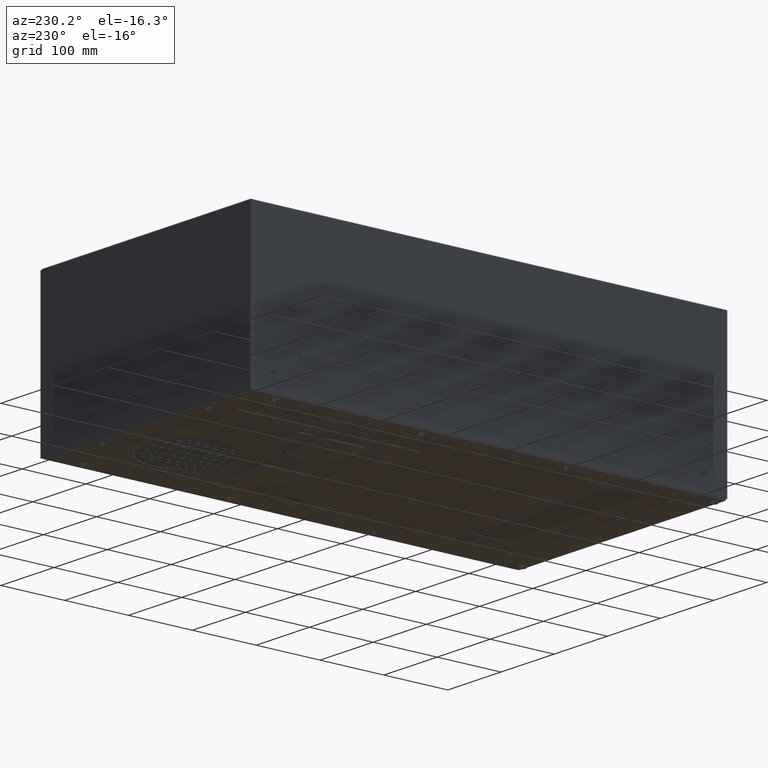
[diagram: clean part render]
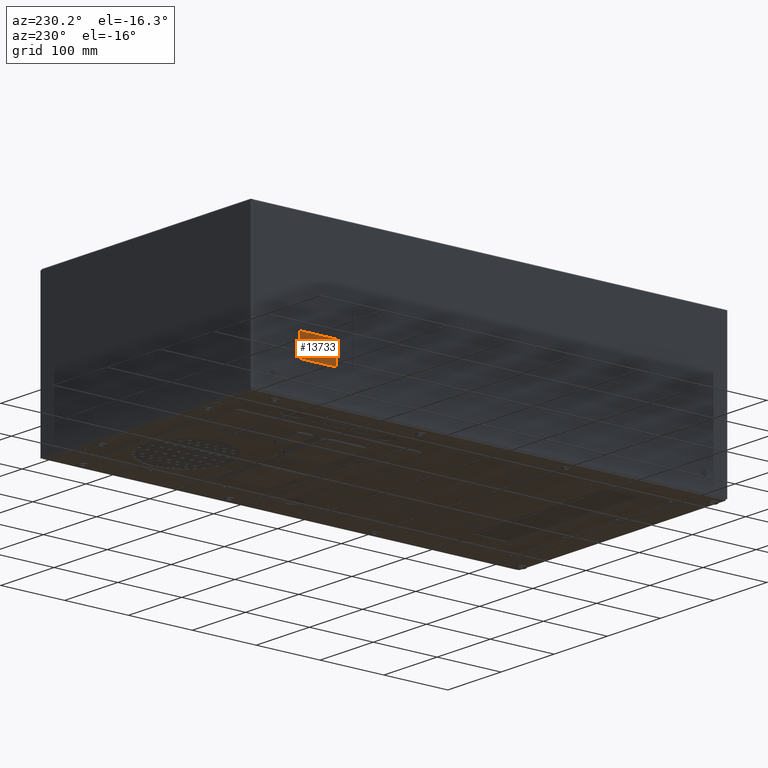
[diagram: same view with one face highlighted and labeled with its STEP entity id]
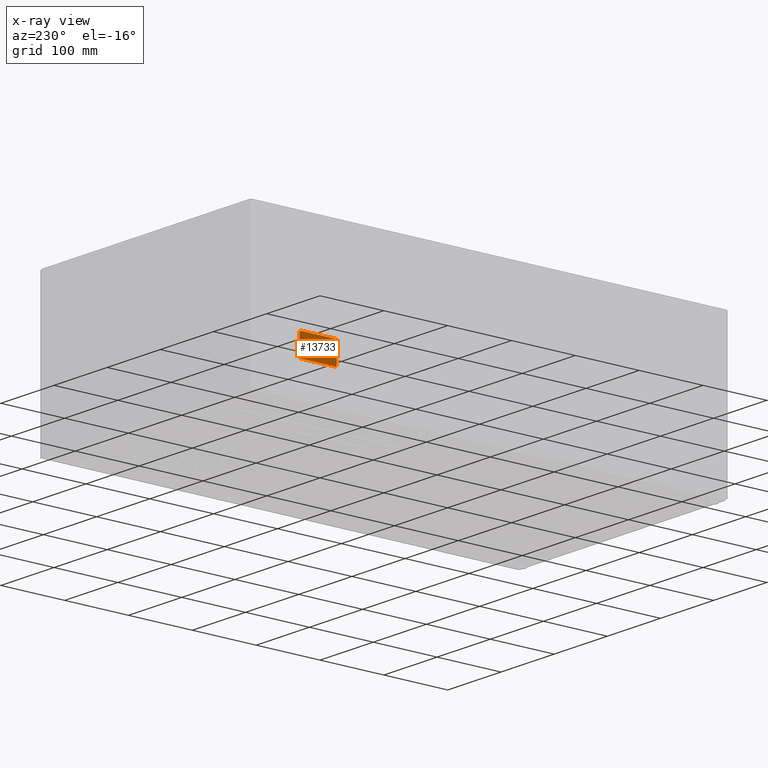
[diagram: x-ray of the same camera — body ghosted, the highlighted face saturated]
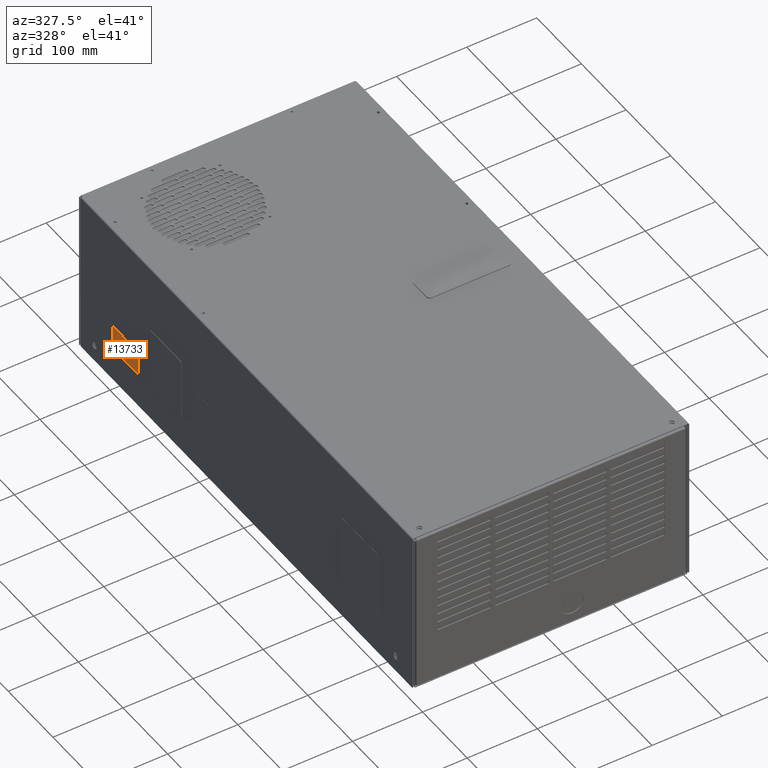
[diagram: same view with one face highlighted and labeled with its STEP entity id]
A machine part, auxiliary view. The second image highlights one B-rep face of the part: STEP entity #13733.
The next image is the same camera in x-ray: the body ghosted, the highlighted face saturated — about 0% of this face is hidden behind the body in this view.
A second angle (auxiliary view) of the same face is appended — the face is thin or edge-on in the first view.
In plain terms, the highlighted planar face has unit normal (-1, 0, 0).
Its self-contained STEP definition (entity closure, byte-faithful):
#362 = VERTEX_POINT ( 'NONE', #57793 ) ;
#846 = VERTEX_POINT ( 'NONE', #58721 ) ;
#1414 = CARTESIAN_POINT ( 'NONE',  ( -7.795275590551181466, 11.61964041831102534, -2.652748818897566974 ) ) ;
#3374 = VERTEX_POINT ( 'NONE', #64704 ) ;
#3586 = VECTOR ( 'NONE', #8534, 39.37007874015748143 ) ;
#6974 = EDGE_CURVE ( 'NONE', #30270, #65971, #50795, .T. ) ;
#8534 = DIRECTION ( 'NONE',  ( 0.000000000000000000, 1.391066095212824273E-14, -1.000000000000000000 ) ) ;
#10426 = EDGE_CURVE ( 'NONE', #846, #56964, #28728, .T. ) ;
#10958 = DIRECTION ( 'NONE',  ( -1.000000000000000000, 0.000000000000000000, 0.000000000000000000 ) ) ;
#11137 = CARTESIAN_POINT ( 'NONE',  ( -7.795275590551181466, 9.493656166342500313, -1.353536220472399298 ) ) ;
#12132 = CARTESIAN_POINT ( 'NONE',  ( -7.795275590551181466, 11.61964041831102534, -2.652748818897566974 ) ) ;
#13733 = ADVANCED_FACE ( 'NONE', ( #65962 ), #66607, .T. ) ;
#15251 = CARTESIAN_POINT ( 'NONE',  ( -7.795275590551181466, 11.61964041831102534, -2.574008661417252153 ) ) ;
#17734 = CIRCLE ( 'NONE', #53359, 0.07874015748031502893 ) ;
#19722 = ORIENTED_EDGE ( 'NONE', *, *, #29205, .T. ) ;
#20291 = EDGE_CURVE ( 'NONE', #3374, #362, #44462, .T. ) ;
#20313 = LINE ( 'NONE', #40603, #50676 ) ;
#22407 = VERTEX_POINT ( 'NONE', #12132 ) ;
#24755 = CARTESIAN_POINT ( 'NONE',  ( -7.795275590551181466, 11.69838057579132062, -1.353536220472369989 ) ) ;
#24963 = DIRECTION ( 'NONE',  ( 0.000000000000000000, -1.387778780781444571E-14, 1.000000000000000000 ) ) ;
#26360 = DIRECTION ( 'NONE',  ( 0.000000000000000000, -1.387778780781444571E-14, 1.000000000000000000 ) ) ;
#27087 = LINE ( 'NONE', #1414, #33185 ) ;
#28728 = CIRCLE ( 'NONE', #52480, 0.07874015748031502893 ) ;
#29194 = ORIENTED_EDGE ( 'NONE', *, *, #47301, .T. ) ;
#29205 = EDGE_CURVE ( 'NONE', #56964, #3374, #32951, .T. ) ;
#29668 = EDGE_CURVE ( 'NONE', #362, #41306, #20313, .T. ) ;
#29832 = CARTESIAN_POINT ( 'NONE',  ( -7.795275590551181466, 11.61964041831100580, -1.274796062992055168 ) ) ;
#30270 = VERTEX_POINT ( 'NONE', #51336 ) ;
#31135 = CARTESIAN_POINT ( 'NONE',  ( -7.795275590551181466, 11.61964041831100580, -1.353536220472369989 ) ) ;
#31144 = DIRECTION ( 'NONE',  ( -1.000000000000000000, 0.000000000000000000, 0.000000000000000000 ) ) ;
#32243 = VECTOR ( 'NONE', #33616, 39.37007874015748143 ) ;
#32416 = AXIS2_PLACEMENT_3D ( 'NONE', #31135, #58473, #49690 ) ;
#32951 = LINE ( 'NONE', #49841, #32243 ) ;
#33185 = VECTOR ( 'NONE', #33805, 39.37007874015748143 ) ;
#33616 = DIRECTION ( 'NONE',  ( 0.000000000000000000, -1.391066095212824273E-14, 1.000000000000000000 ) ) ;
#33805 = DIRECTION ( 'NONE',  ( 0.000000000000000000, -1.000000000000000000, -1.391066095212824273E-14 ) ) ;
#34092 = DIRECTION ( 'NONE',  ( -1.000000000000000000, 0.000000000000000000, 0.000000000000000000 ) ) ;
#35504 = ORIENTED_EDGE ( 'NONE', *, *, #20291, .T. ) ;
#37483 = ORIENTED_EDGE ( 'NONE', *, *, #6974, .T. ) ;
#39673 = ORIENTED_EDGE ( 'NONE', *, *, #66503, .T. ) ;
#40603 = CARTESIAN_POINT ( 'NONE',  ( -7.795275590551181466, 9.493656166342500313, -1.274796062992084700 ) ) ;
#40621 = DIRECTION ( 'NONE',  ( 0.000000000000000000, 0.000000000000000000, 1.000000000000000000 ) ) ;
#41306 = VERTEX_POINT ( 'NONE', #29832 ) ;
#42418 = DIRECTION ( 'NONE',  ( 0.000000000000000000, -2.775557561562889142E-14, 1.000000000000000000 ) ) ;
#42681 = AXIS2_PLACEMENT_3D ( 'NONE', #15251, #31144, #40621 ) ;
#44462 = CIRCLE ( 'NONE', #61727, 0.07874015748031502893 ) ;
#47301 = EDGE_CURVE ( 'NONE', #65971, #22407, #17734, .T. ) ;
#49690 = DIRECTION ( 'NONE',  ( 0.000000000000000000, -2.775557561562889142E-14, 1.000000000000000000 ) ) ;
#49841 = CARTESIAN_POINT ( 'NONE',  ( -7.795275590551181466, 9.414916008862205032, -2.574008661417283239 ) ) ;
#50061 = ORIENTED_EDGE ( 'NONE', *, *, #60942, .T. ) ;
#50676 = VECTOR ( 'NONE', #61201, 39.37007874015748143 ) ;
#50795 = LINE ( 'NONE', #24755, #3586 ) ;
#50815 = ORIENTED_EDGE ( 'NONE', *, *, #10426, .T. ) ;
#51336 = CARTESIAN_POINT ( 'NONE',  ( -7.795275590551181466, 11.69838057579132062, -1.353536220472369989 ) ) ;
#51727 = DIRECTION ( 'NONE',  ( -1.000000000000000000, 0.000000000000000000, 0.000000000000000000 ) ) ;
#52165 = CARTESIAN_POINT ( 'NONE',  ( -7.795275590551181466, 9.414916008862205032, -2.574008661417283239 ) ) ;
#52480 = AXIS2_PLACEMENT_3D ( 'NONE', #59787, #34092, #24963 ) ;
#52886 = ORIENTED_EDGE ( 'NONE', *, *, #29668, .T. ) ;
#53359 = AXIS2_PLACEMENT_3D ( 'NONE', #58273, #10958, #42418 ) ;
#56964 = VERTEX_POINT ( 'NONE', #52165 ) ;
#57563 = CARTESIAN_POINT ( 'NONE',  ( -7.795275590551181466, 11.69838057579134016, -2.574008661417252153 ) ) ;
#57793 = CARTESIAN_POINT ( 'NONE',  ( -7.795275590551181466, 9.493656166342500313, -1.274796062992084700 ) ) ;
#58273 = CARTESIAN_POINT ( 'NONE',  ( -7.795275590551181466, 11.61964041831102534, -2.574008661417252153 ) ) ;
#58473 = DIRECTION ( 'NONE',  ( -1.000000000000000000, 0.000000000000000000, 0.000000000000000000 ) ) ;
#58721 = CARTESIAN_POINT ( 'NONE',  ( -7.795275590551181466, 9.493656166342519853, -2.652748818897598060 ) ) ;
#59767 = EDGE_LOOP ( 'NONE', ( #29194, #50061, #50815, #19722, #35504, #52886, #39673, #37483 ) ) ;
#59787 = CARTESIAN_POINT ( 'NONE',  ( -7.795275590551181466, 9.493656166342519853, -2.574008661417283239 ) ) ;
#60942 = EDGE_CURVE ( 'NONE', #22407, #846, #27087, .T. ) ;
#61201 = DIRECTION ( 'NONE',  ( 0.000000000000000000, 1.000000000000000000, 1.391066095212824273E-14 ) ) ;
#61727 = AXIS2_PLACEMENT_3D ( 'NONE', #11137, #51727, #26360 ) ;
#64704 = CARTESIAN_POINT ( 'NONE',  ( -7.795275590551181466, 9.414916008862185492, -1.353536220472401519 ) ) ;
#64775 = CIRCLE ( 'NONE', #32416, 0.07874015748031502893 ) ;
#65962 = FACE_OUTER_BOUND ( 'NONE', #59767, .T. ) ;
#65971 = VERTEX_POINT ( 'NONE', #57563 ) ;
#66503 = EDGE_CURVE ( 'NONE', #41306, #30270, #64775, .T. ) ;
#66607 = PLANE ( 'NONE',  #42681 ) ;